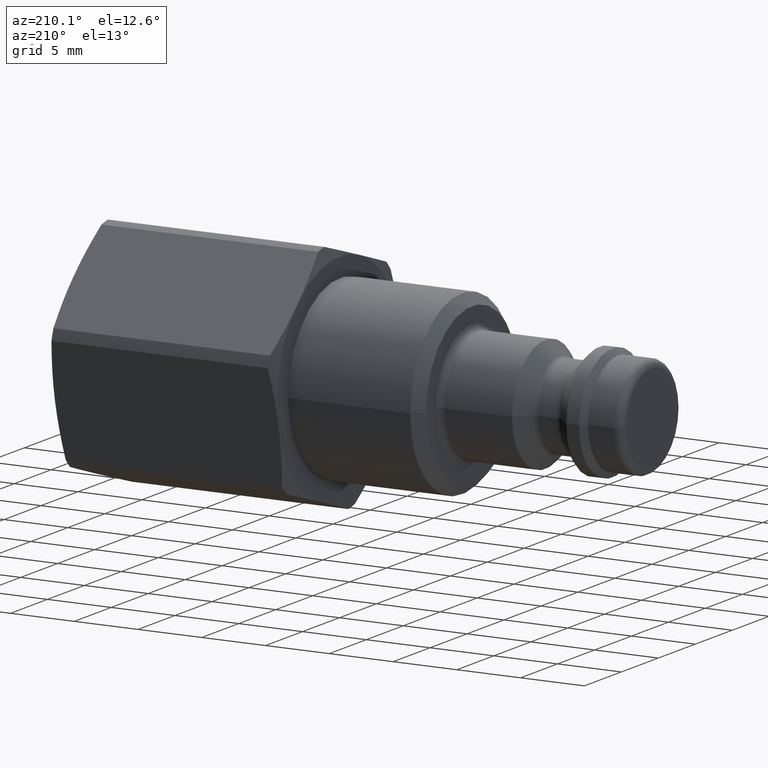
[diagram: clean part render]
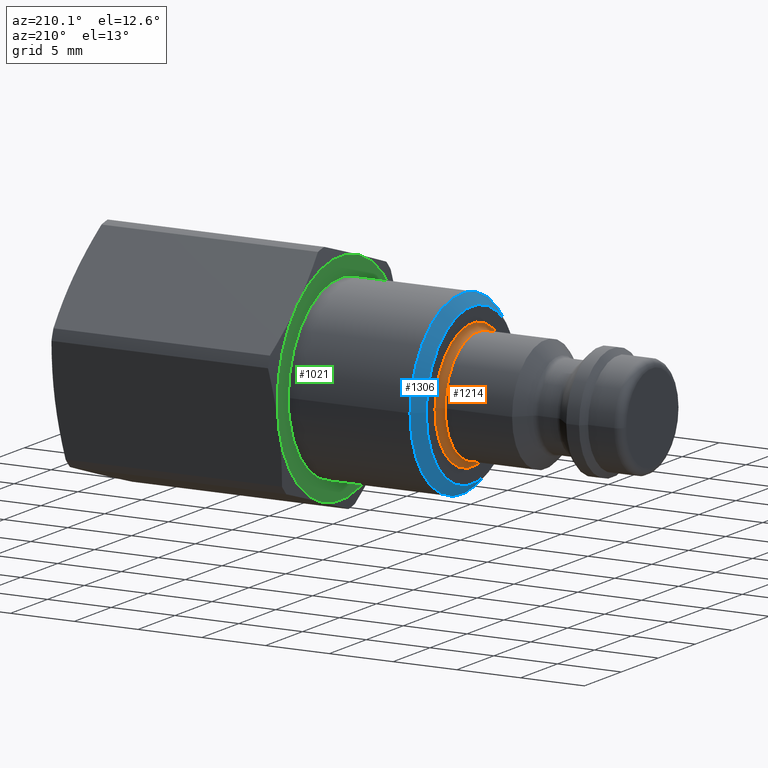
[diagram: same view with three faces highlighted in distinct colors, each labeled with its STEP entity id]
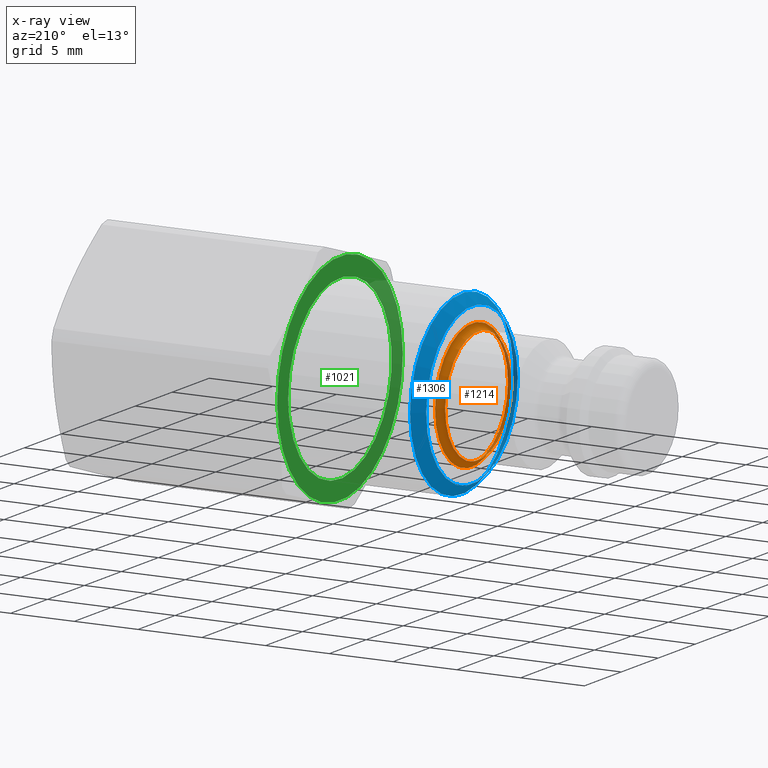
[diagram: x-ray of the same camera — body ghosted, the three highlighted faces saturated]
A machine part, auxiliary view with three faces highlighted in distinct colors.
The next image is the same camera in x-ray (body ghosted, the three faces saturated) — at least one of them is partly hidden behind the body in this view.
Their STEP definitions:

[orange] entity #1214 — the highlighted toroidal blend (fillet) surface has major radius 5 mm and minor (blend) radius 0.5 mm.
#1187=CARTESIAN_POINT('',(13.600000000000001,0.0,0.0));
#1188=DIRECTION('',(1.0,0.0,0.0));
#1189=DIRECTION('',(0.0,0.0,-1.0));
#1190=AXIS2_PLACEMENT_3D('',#1187,#1188,#1189);
#1191=TOROIDAL_SURFACE('',#1190,5.000000000000001,0.5);
#1192=CARTESIAN_POINT('',(13.600000000000001,4.500000000000001,0.0));
#1193=VERTEX_POINT('',#1192);
#1194=CARTESIAN_POINT('',(13.600000000000001,0.0,0.0));
#1195=DIRECTION('',(1.0,0.0,0.0));
#1196=DIRECTION('',(0.0,-1.0,0.0));
#1197=AXIS2_PLACEMENT_3D('',#1194,#1195,#1196);
#1198=CIRCLE('',#1197,4.500000000000001);
#1199=EDGE_CURVE('',#1193,#1193,#1198,.T.);
#1200=ORIENTED_EDGE('',*,*,#1199,.T.);
#1201=EDGE_LOOP('',(#1200));
#1202=FACE_OUTER_BOUND('',#1201,.T.);
#1203=CARTESIAN_POINT('',(14.100000000000001,5.000000000000001,-1.224647E-015));
#1204=VERTEX_POINT('',#1203);
#1205=CARTESIAN_POINT('',(14.100000000000001,0.0,0.0));
#1206=DIRECTION('',(-1.0,0.0,0.0));
#1207=DIRECTION('',(0.0,-1.0,0.0));
#1208=AXIS2_PLACEMENT_3D('',#1205,#1206,#1207);
#1209=CIRCLE('',#1208,5.000000000000001);
#1210=EDGE_CURVE('',#1204,#1204,#1209,.T.);
#1211=ORIENTED_EDGE('',*,*,#1210,.T.);
#1212=EDGE_LOOP('',(#1211));
#1213=FACE_BOUND('',#1212,.T.);
#1214=ADVANCED_FACE('',(#1202,#1213),#1191,.F.);

[blue] entity #1306 — the highlighted conical surface has half-angle 45 deg.
#1220=CARTESIAN_POINT('',(14.100000000000001,6.199999999999999,7.592810E-016));
#1221=VERTEX_POINT('',#1220);
#1222=CARTESIAN_POINT('',(14.100000000000001,0.0,0.0));
#1223=DIRECTION('',(1.0,0.0,0.0));
#1224=DIRECTION('',(0.0,-1.0,0.0));
#1225=AXIS2_PLACEMENT_3D('',#1222,#1223,#1224);
#1226=CIRCLE('',#1225,6.199999999999999);
#1227=EDGE_CURVE('',#1221,#1221,#1226,.T.);
#1287=CARTESIAN_POINT('',(14.500000000000002,0.0,0.0));
#1288=DIRECTION('',(1.0,0.0,0.0));
#1289=DIRECTION('',(0.0,-1.0,0.0));
#1290=AXIS2_PLACEMENT_3D('',#1287,#1288,#1289);
#1291=CONICAL_SURFACE('',#1290,6.6,45.000000000000043);
#1292=ORIENTED_EDGE('',*,*,#1227,.T.);
#1293=EDGE_LOOP('',(#1292));
#1294=FACE_OUTER_BOUND('',#1293,.T.);
#1295=CARTESIAN_POINT('',(14.900000000000002,7.000000000000001,-8.572528E-016));
#1296=VERTEX_POINT('',#1295);
#1297=CARTESIAN_POINT('',(14.900000000000002,0.0,0.0));
#1298=DIRECTION('',(-1.0,0.0,0.0));
#1299=DIRECTION('',(0.0,-1.0,0.0));
#1300=AXIS2_PLACEMENT_3D('',#1297,#1298,#1299);
#1301=CIRCLE('',#1300,7.000000000000001);
#1302=EDGE_CURVE('',#1296,#1296,#1301,.T.);
#1303=ORIENTED_EDGE('',*,*,#1302,.T.);
#1304=EDGE_LOOP('',(#1303));
#1305=FACE_BOUND('',#1304,.T.);
#1306=ADVANCED_FACE('',(#1294,#1305),#1291,.T.);

[green] entity #1021 — the highlighted planar face has unit normal (-1, 0, 0).
#98=CARTESIAN_POINT('',(24.450000000000006,5.741100697266218,6.268154655386971));
#99=VERTEX_POINT('',#98);
#182=CARTESIAN_POINT('',(24.450000000000006,-2.557830817781698,8.106016377210587));
#183=VERTEX_POINT('',#182);
#266=CARTESIAN_POINT('',(24.450000000000006,-8.298931515047919,1.83786172182362));
#267=VERTEX_POINT('',#266);
#350=CARTESIAN_POINT('',(24.450000000000006,-5.741100697266223,-6.268154655386969));
#351=VERTEX_POINT('',#350);
#434=CARTESIAN_POINT('',(24.450000000000006,2.557830817781694,-8.106016377210587));
#435=VERTEX_POINT('',#434);
#494=CARTESIAN_POINT('',(24.45000000000001,8.298931515047919,-1.837861721823621));
#495=VERTEX_POINT('',#494);
#496=CARTESIAN_POINT('',(24.45000000000001,-2.855046E-033,1.069106E-049));
#497=DIRECTION('',(-1.0,-1.550753E-034,3.434260E-035));
#498=DIRECTION('',(-1.588325E-034,0.976344884123284,-0.216219026096897));
#499=AXIS2_PLACEMENT_3D('',#496,#497,#498);
#500=CIRCLE('',#499,8.500000000000002);
#501=EDGE_CURVE('',#495,#435,#500,.T.);
#534=CARTESIAN_POINT('',(24.45000000000001,-2.855046E-033,1.069106E-049));
#535=DIRECTION('',(-1.0,-1.550753E-034,3.434260E-035));
#536=DIRECTION('',(-1.588325E-034,0.976344884123284,-0.216219026096897));
#537=AXIS2_PLACEMENT_3D('',#534,#535,#536);
#538=CIRCLE('',#537,8.500000000000002);
#539=EDGE_CURVE('',#435,#351,#538,.T.);
#558=CARTESIAN_POINT('',(24.45000000000001,-2.855046E-033,1.069106E-049));
#559=DIRECTION('',(-1.0,-1.550753E-034,3.434260E-035));
#560=DIRECTION('',(-1.588325E-034,0.976344884123284,-0.216219026096897));
#561=AXIS2_PLACEMENT_3D('',#558,#559,#560);
#562=CIRCLE('',#561,8.500000000000002);
#563=EDGE_CURVE('',#351,#267,#562,.T.);
#582=CARTESIAN_POINT('',(24.45000000000001,-2.855046E-033,1.069106E-049));
#583=DIRECTION('',(-1.0,-1.550753E-034,3.434260E-035));
#584=DIRECTION('',(-1.588325E-034,0.976344884123284,-0.216219026096897));
#585=AXIS2_PLACEMENT_3D('',#582,#583,#584);
#586=CIRCLE('',#585,8.500000000000002);
#587=EDGE_CURVE('',#267,#183,#586,.T.);
#628=CARTESIAN_POINT('',(24.45000000000001,-2.855046E-033,1.069106E-049));
#629=DIRECTION('',(-1.0,-1.550753E-034,3.434260E-035));
#630=DIRECTION('',(-1.588325E-034,0.976344884123284,-0.216219026096897));
#631=AXIS2_PLACEMENT_3D('',#628,#629,#630);
#632=CIRCLE('',#631,8.500000000000002);
#633=EDGE_CURVE('',#99,#495,#632,.T.);
#644=CARTESIAN_POINT('',(24.45000000000001,-2.855046E-033,1.069106E-049));
#645=DIRECTION('',(-1.0,-1.550753E-034,3.434260E-035));
#646=DIRECTION('',(-1.588325E-034,0.976344884123284,-0.216219026096897));
#647=AXIS2_PLACEMENT_3D('',#644,#645,#646);
#648=CIRCLE('',#647,8.500000000000002);
#649=EDGE_CURVE('',#183,#99,#648,.T.);
#997=CARTESIAN_POINT('',(24.45000000000001,7.566672851955454,-1.675697452250949));
#998=DIRECTION('',(-1.0,0.0,0.0));
#999=DIRECTION('',(0.0,0.216219026096897,0.976344884123284));
#1000=AXIS2_PLACEMENT_3D('',#997,#998,#999);
#1001=PLANE('',#1000);
#1002=ORIENTED_EDGE('',*,*,#501,.T.);
#1003=ORIENTED_EDGE('',*,*,#539,.T.);
#1004=ORIENTED_EDGE('',*,*,#563,.T.);
#1005=ORIENTED_EDGE('',*,*,#587,.T.);
#1006=ORIENTED_EDGE('',*,*,#649,.T.);
#1007=ORIENTED_EDGE('',*,*,#633,.T.);
#1008=EDGE_LOOP('',(#1002,#1003,#1004,#1005,#1006,#1007));
#1009=FACE_OUTER_BOUND('',#1008,.T.);
#1010=CARTESIAN_POINT('',(24.45000000000001,6.834414188862991,-1.513533182678276));
#1011=VERTEX_POINT('',#1010);
#1012=CARTESIAN_POINT('',(24.45000000000001,-2.855046E-033,1.069106E-049));
#1013=DIRECTION('',(-1.0,-1.550753E-034,3.434260E-035));
#1014=DIRECTION('',(-1.588325E-034,0.976344884123284,-0.216219026096897));
#1015=AXIS2_PLACEMENT_3D('',#1012,#1013,#1014);
#1016=CIRCLE('',#1015,7.0);
#1017=EDGE_CURVE('',#1011,#1011,#1016,.T.);
#1018=ORIENTED_EDGE('',*,*,#1017,.F.);
#1019=EDGE_LOOP('',(#1018));
#1020=FACE_BOUND('',#1019,.T.);
#1021=ADVANCED_FACE('',(#1009,#1020),#1001,.T.);